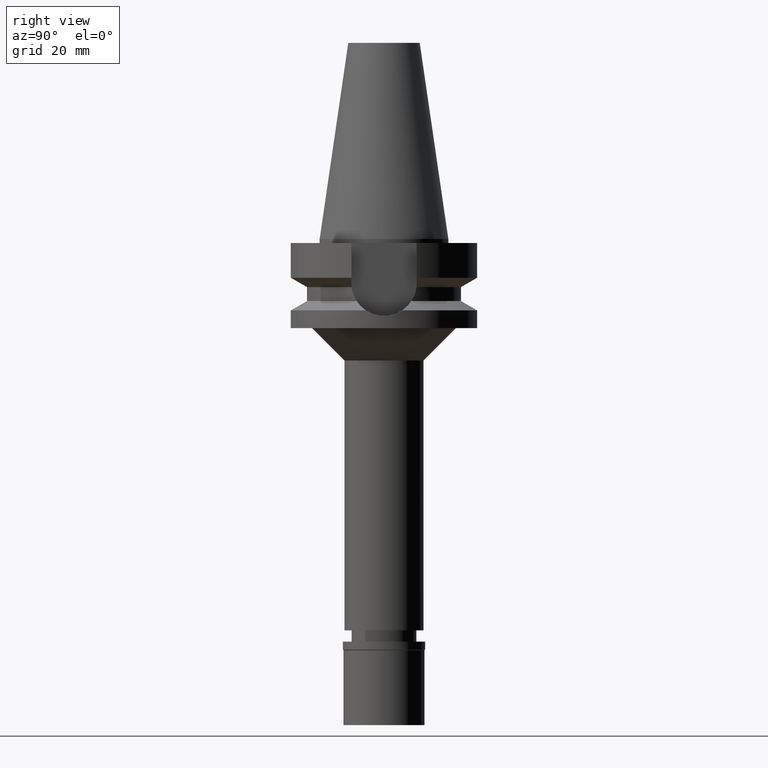
[diagram: clean part render]
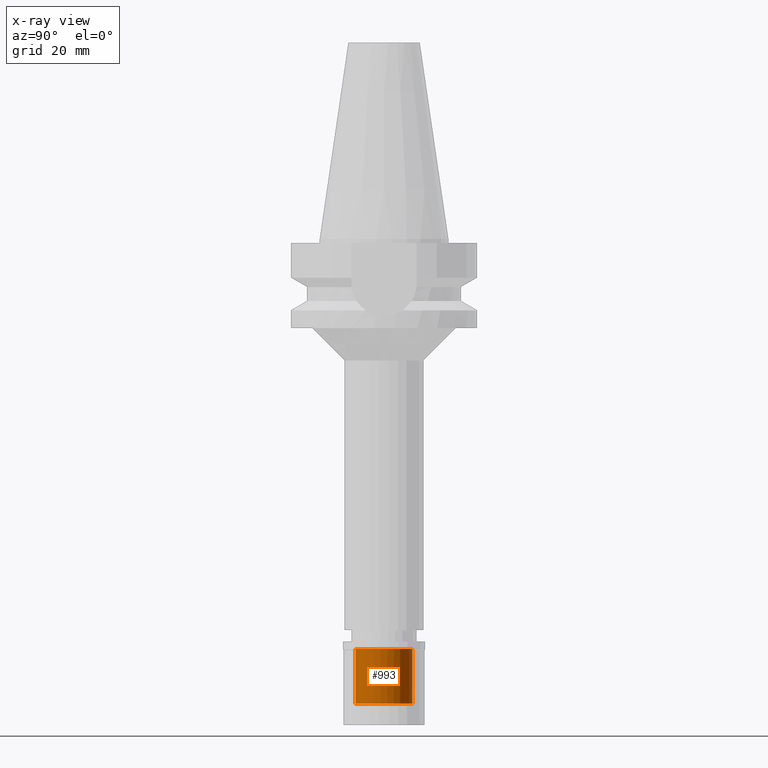
[diagram: x-ray — body ghosted, one internal face saturated and labeled with its STEP entity id]
A machine part, right view, then the same camera in x-ray: the body is ghosted and one INTERNAL B-rep face — a face not visible from any outside direction — is saturated and labeled: STEP entity #993.
In plain terms, the highlighted cylindrical surface (edge-blend (fillet) strip) has radius 7 mm, axis along (0, 0, -1).
Its self-contained STEP definition (entity closure, byte-faithful):
#120 = CARTESIAN_POINT ( 'NONE',  ( 0.0000000000000000000, 7.000000000000000000, -15.29999999999999893 ) ) ;
#254 = DIRECTION ( 'NONE',  ( 0.0000000000000000000, 0.0000000000000000000, -1.000000000000000000 ) ) ;
#291 = ORIENTED_EDGE ( 'NONE', *, *, #1911, .F. ) ;
#377 = EDGE_CURVE ( 'NONE', #1010, #2096, #1713, .T. ) ;
#413 = AXIS2_PLACEMENT_3D ( 'NONE', #1299, #1789, #2299 ) ;
#474 = AXIS2_PLACEMENT_3D ( 'NONE', #2383, #254, #927 ) ;
#522 = DIRECTION ( 'NONE',  ( 0.0000000000000000000, 0.0000000000000000000, 1.000000000000000000 ) ) ;
#742 = LINE ( 'NONE', #1705, #2247 ) ;
#793 = CARTESIAN_POINT ( 'NONE',  ( 0.0000000000000000000, 7.000000000000000000, -1.800000000000000044 ) ) ;
#799 = AXIS2_PLACEMENT_3D ( 'NONE', #1301, #2256, #2026 ) ;
#927 = DIRECTION ( 'NONE',  ( 0.0000000000000000000, -1.000000000000000000, 0.0000000000000000000 ) ) ;
#937 = ORIENTED_EDGE ( 'NONE', *, *, #377, .T. ) ;
#993 = ADVANCED_FACE ( 'NONE', ( #2638 ), #1648, .F. ) ;
#1010 = VERTEX_POINT ( 'NONE', #2345 ) ;
#1168 = ORIENTED_EDGE ( 'NONE', *, *, #2236, .T. ) ;
#1299 = CARTESIAN_POINT ( 'NONE',  ( 0.0000000000000000000, 0.0000000000000000000, -1.800000000000000044 ) ) ;
#1301 = CARTESIAN_POINT ( 'NONE',  ( 0.0000000000000000000, 0.0000000000000000000, -15.29999999999999893 ) ) ;
#1416 = CARTESIAN_POINT ( 'NONE',  ( 0.0000000000000000000, -7.000000000000000000, -1.800000000000000044 ) ) ;
#1648 = CYLINDRICAL_SURFACE ( 'NONE', #474, 7.000000000000000000 ) ;
#1671 = VECTOR ( 'NONE', #2648, 1000.000000000000000 ) ;
#1686 = CARTESIAN_POINT ( 'NONE',  ( 0.0000000000000000000, -7.000000000000000000, -15.29999999999999893 ) ) ;
#1705 = CARTESIAN_POINT ( 'NONE',  ( 0.0000000000000000000, 7.000000000000000000, -15.29999999999999893 ) ) ;
#1713 = LINE ( 'NONE', #1686, #1671 ) ;
#1754 = CIRCLE ( 'NONE', #799, 7.000000000000000000 ) ;
#1789 = DIRECTION ( 'NONE',  ( 0.0000000000000000000, 0.0000000000000000000, 1.000000000000000000 ) ) ;
#1911 = EDGE_CURVE ( 'NONE', #1942, #2843, #742, .T. ) ;
#1942 = VERTEX_POINT ( 'NONE', #120 ) ;
#2026 = DIRECTION ( 'NONE',  ( 0.0000000000000000000, 1.000000000000000000, 0.0000000000000000000 ) ) ;
#2096 = VERTEX_POINT ( 'NONE', #1416 ) ;
#2200 = CIRCLE ( 'NONE', #413, 7.000000000000000000 ) ;
#2236 = EDGE_CURVE ( 'NONE', #1942, #1010, #1754, .T. ) ;
#2247 = VECTOR ( 'NONE', #522, 1000.000000000000000 ) ;
#2256 = DIRECTION ( 'NONE',  ( 0.0000000000000000000, 0.0000000000000000000, -1.000000000000000000 ) ) ;
#2296 = ORIENTED_EDGE ( 'NONE', *, *, #3030, .T. ) ;
#2299 = DIRECTION ( 'NONE',  ( 0.0000000000000000000, -1.000000000000000000, 0.0000000000000000000 ) ) ;
#2345 = CARTESIAN_POINT ( 'NONE',  ( 0.0000000000000000000, -7.000000000000000000, -15.29999999999999893 ) ) ;
#2383 = CARTESIAN_POINT ( 'NONE',  ( 0.0000000000000000000, 0.0000000000000000000, 0.0000000000000000000 ) ) ;
#2638 = FACE_OUTER_BOUND ( 'NONE', #2826, .T. ) ;
#2648 = DIRECTION ( 'NONE',  ( 0.0000000000000000000, 0.0000000000000000000, 1.000000000000000000 ) ) ;
#2826 = EDGE_LOOP ( 'NONE', ( #1168, #937, #2296, #291 ) ) ;
#2843 = VERTEX_POINT ( 'NONE', #793 ) ;
#3030 = EDGE_CURVE ( 'NONE', #2096, #2843, #2200, .T. ) ;